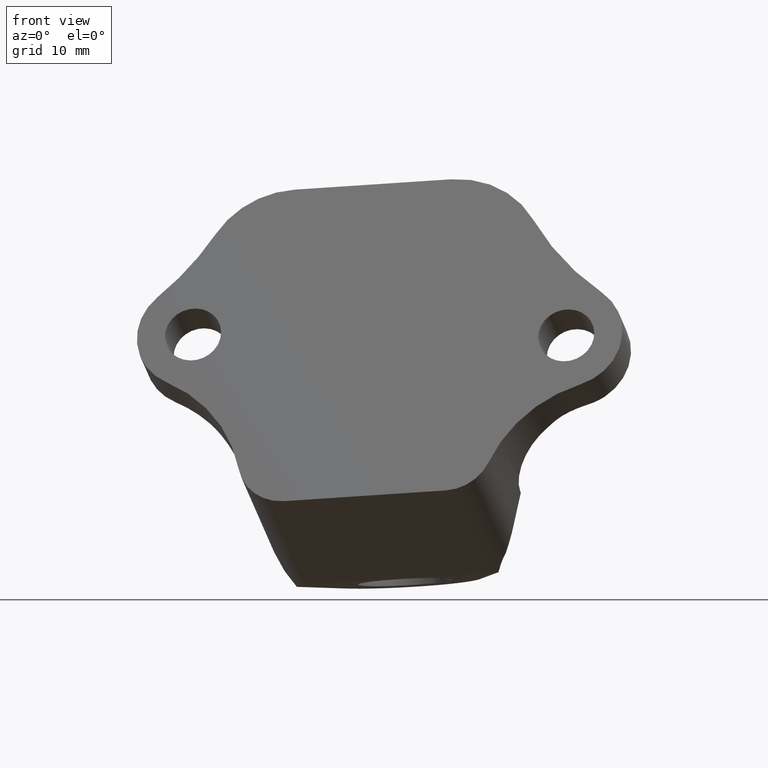
[diagram: clean part render]
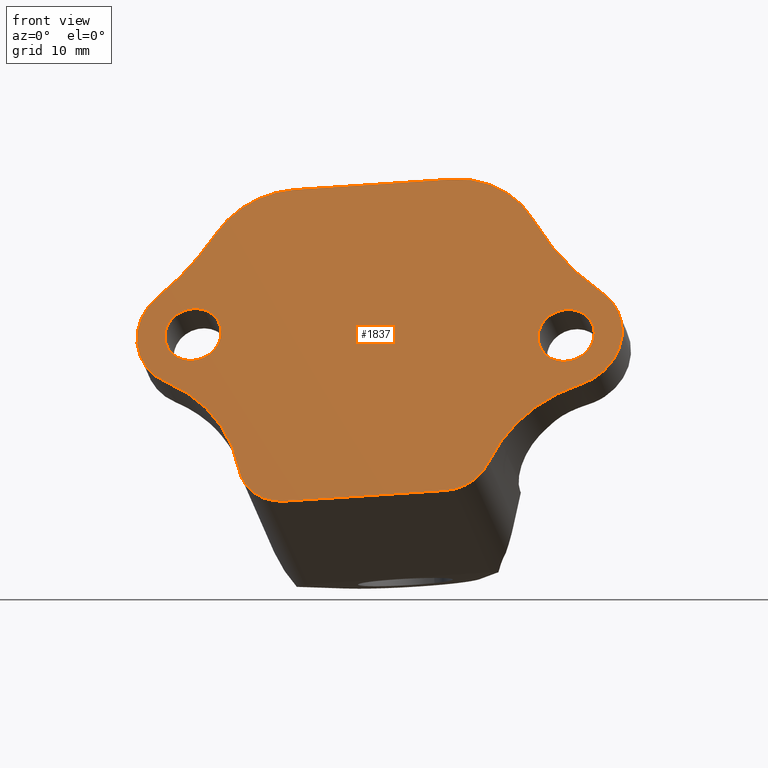
[diagram: same view with one face highlighted and labeled with its STEP entity id]
A machine part, front view. The second image highlights one B-rep face of the part: STEP entity #1837.
In plain terms, the highlighted planar face has unit normal (0.1825, 0.8911, -0.4155).
Its self-contained STEP definition (entity closure, byte-faithful):
#61=CARTESIAN_POINT('Vertex',(1331.61030027,258.493859038,164.295802746)) ;
#66=CARTESIAN_POINT('Axis2P3D Location',(1334.19882548,258.666229094,165.802396857)) ;
#70=CARTESIAN_POINT('Vertex',(1336.78735069,258.83859915,167.308990967)) ;
#92=CARTESIAN_POINT('Axis2P3D Location',(1334.19882548,258.666229094,165.802396857)) ;
#229=CARTESIAN_POINT('Vertex',(1299.80961019,259.174976697,151.788538031)) ;
#232=CARTESIAN_POINT('Axis2P3D Location',(1285.27377457,260.548928729,148.350262515)) ;
#236=CARTESIAN_POINT('Vertex',(1292.23586716,264.966287947,160.880873209)) ;
#369=CARTESIAN_POINT('Vertex',(1335.6919329,255.961794454,160.658792722)) ;
#374=CARTESIAN_POINT('Axis2P3D Location',(1339.42470147,249.200707855,147.799782384)) ;
#378=CARTESIAN_POINT('Vertex',(1326.05604809,254.126840732,152.491511471)) ;
#452=CARTESIAN_POINT('Vertex',(1297.6092294,266.90560169,167.399711597)) ;
#457=CARTESIAN_POINT('Axis2P3D Location',(1295.02070419,266.733231634,165.893117486)) ;
#461=CARTESIAN_POINT('Vertex',(1292.43217898,266.560861578,164.386523376)) ;
#483=CARTESIAN_POINT('Axis2P3D Location',(1295.02070419,266.733231634,165.893117486)) ;
#678=CARTESIAN_POINT('Axis2P3D Location',(1321.5998303,255.768885024,154.055421167)) ;
#682=CARTESIAN_POINT('Vertex',(1321.53417439,253.666951835,149.519170934)) ;
#886=CARTESIAN_POINT('Line Origine',(1313.06170361,255.141005666,148.958775286)) ;
#890=CARTESIAN_POINT('Vertex',(1304.58923282,256.615059497,148.398379638)) ;
#1519=CARTESIAN_POINT('Axis2P3D Location',(1304.65488874,258.716992686,152.93462987)) ;
#1628=CARTESIAN_POINT('Vertex',(1337.96977131,259.981879203,170.28001144)) ;
#1631=CARTESIAN_POINT('Axis2P3D Location',(1334.19882548,258.666229094,165.802396857)) ;
#1661=CARTESIAN_POINT('Axis2P3D Location',(1295.02070419,266.733231634,165.893117486)) ;
#1665=CARTESIAN_POINT('Vertex',(1291.32645438,269.331766559,169.842818055)) ;
#1761=CARTESIAN_POINT('Axis2P3D Location',(1339.21207139,291.514309751,238.444211215)) ;
#1766=CARTESIAN_POINT('Axis2P3D Location',(1321.98565033,264.577855101,173.114952198)) ;
#1770=CARTESIAN_POINT('Vertex',(1330.6930859,265.07567481,178.007062302)) ;
#1772=CARTESIAN_POINT('Vertex',(1322.11696215,268.78172148,182.187452662)) ;
#1775=CARTESIAN_POINT('Line Origine',(1313.90609039,270.210261899,181.64435999)) ;
#1779=CARTESIAN_POINT('Vertex',(1305.69521864,271.63880232,181.101267317)) ;
#1782=CARTESIAN_POINT('Axis2P3D Location',(1305.56390681,267.434935941,172.028766853)) ;
#1786=CARTESIAN_POINT('Vertex',(1297.38986915,271.158803795,176.423982028)) ;
#1789=CARTESIAN_POINT('Axis2P3D Location',(1272.85520533,282.324441184,189.591320898)) ;
#1793=CARTESIAN_POINT('Vertex',(1297.38673136,271.157310954,176.419402544)) ;
#1796=CARTESIAN_POINT('Axis2P3D Location',(1272.85520533,282.324441184,189.591320898)) ;
#1801=CARTESIAN_POINT('Axis2P3D Location',(1356.82450044,266.560129749,192.668084358)) ;
#1805=CARTESIAN_POINT('Vertex',(1330.69536178,265.073423692,178.003234612)) ;
#1808=CARTESIAN_POINT('Axis2P3D Location',(1356.82450044,266.560129749,192.668084358)) ;
#67=DIRECTION('Axis2P3D Direction',(-0.182515811719,-0.891077463515,0.415534514196)) ;
#93=DIRECTION('Axis2P3D Direction',(-0.182515811719,-0.891077463515,0.415534514196)) ;
#233=DIRECTION('Axis2P3D Direction',(0.182515811719,0.891077463515,-0.415534514196)) ;
#375=DIRECTION('Axis2P3D Direction',(0.182515811719,0.891077463515,-0.415534514196)) ;
#458=DIRECTION('Axis2P3D Direction',(-0.182515811719,-0.891077463515,0.415534514196)) ;
#484=DIRECTION('Axis2P3D Direction',(-0.182515811719,-0.891077463515,0.415534514196)) ;
#679=DIRECTION('Axis2P3D Direction',(0.182515811719,0.891077463515,-0.415534514196)) ;
#887=DIRECTION('Vector Direction',(0.983115227494,-0.171043938009,0.0650263080575)) ;
#1520=DIRECTION('Axis2P3D Direction',(0.182515811719,0.891077463515,-0.415534514196)) ;
#1632=DIRECTION('Axis2P3D Direction',(0.182515811719,0.891077463515,-0.415534514196)) ;
#1662=DIRECTION('Axis2P3D Direction',(0.182515811719,0.891077463515,-0.415534514196)) ;
#1762=DIRECTION('Axis2P3D Direction',(0.182515811719,0.891077463515,-0.415534514196)) ;
#1763=DIRECTION('Axis2P3D XDirection',(-0.39294746136,-0.321303057612,-0.861601205768)) ;
#1767=DIRECTION('Axis2P3D Direction',(0.182515811719,0.891077463515,-0.415534514196)) ;
#1776=DIRECTION('Vector Direction',(-0.983115227494,0.171043938009,-0.0650263080575)) ;
#1783=DIRECTION('Axis2P3D Direction',(0.182515811719,0.891077463515,-0.415534514196)) ;
#1790=DIRECTION('Axis2P3D Direction',(0.182515811719,0.891077463515,-0.415534514196)) ;
#1797=DIRECTION('Axis2P3D Direction',(0.182515811719,0.891077463515,-0.415534514196)) ;
#1802=DIRECTION('Axis2P3D Direction',(0.182515811719,0.891077463515,-0.415534514196)) ;
#1809=DIRECTION('Axis2P3D Direction',(0.182515811719,0.891077463515,-0.415534514196)) ;
#68=AXIS2_PLACEMENT_3D('Circle Axis2P3D',#66,#67,$) ;
#94=AXIS2_PLACEMENT_3D('Circle Axis2P3D',#92,#93,$) ;
#234=AXIS2_PLACEMENT_3D('Circle Axis2P3D',#232,#233,$) ;
#376=AXIS2_PLACEMENT_3D('Circle Axis2P3D',#374,#375,$) ;
#459=AXIS2_PLACEMENT_3D('Circle Axis2P3D',#457,#458,$) ;
#485=AXIS2_PLACEMENT_3D('Circle Axis2P3D',#483,#484,$) ;
#680=AXIS2_PLACEMENT_3D('Circle Axis2P3D',#678,#679,$) ;
#1521=AXIS2_PLACEMENT_3D('Circle Axis2P3D',#1519,#1520,$) ;
#1633=AXIS2_PLACEMENT_3D('Circle Axis2P3D',#1631,#1632,$) ;
#1663=AXIS2_PLACEMENT_3D('Circle Axis2P3D',#1661,#1662,$) ;
#1764=AXIS2_PLACEMENT_3D('Plane Axis2P3D',#1761,#1762,#1763) ;
#1768=AXIS2_PLACEMENT_3D('Circle Axis2P3D',#1766,#1767,$) ;
#1784=AXIS2_PLACEMENT_3D('Circle Axis2P3D',#1782,#1783,$) ;
#1791=AXIS2_PLACEMENT_3D('Circle Axis2P3D',#1789,#1790,$) ;
#1798=AXIS2_PLACEMENT_3D('Circle Axis2P3D',#1796,#1797,$) ;
#1803=AXIS2_PLACEMENT_3D('Circle Axis2P3D',#1801,#1802,$) ;
#1810=AXIS2_PLACEMENT_3D('Circle Axis2P3D',#1808,#1809,$) ;
#1814=ORIENTED_EDGE('',*,*,#1774,.T.) ;
#1815=ORIENTED_EDGE('',*,*,#1781,.T.) ;
#1816=ORIENTED_EDGE('',*,*,#1788,.T.) ;
#1817=ORIENTED_EDGE('',*,*,#1795,.T.) ;
#1818=ORIENTED_EDGE('',*,*,#1800,.T.) ;
#1819=ORIENTED_EDGE('',*,*,#1667,.F.) ;
#1820=ORIENTED_EDGE('',*,*,#238,.T.) ;
#1821=ORIENTED_EDGE('',*,*,#1523,.F.) ;
#1822=ORIENTED_EDGE('',*,*,#892,.T.) ;
#1823=ORIENTED_EDGE('',*,*,#684,.F.) ;
#1824=ORIENTED_EDGE('',*,*,#380,.T.) ;
#1825=ORIENTED_EDGE('',*,*,#1635,.F.) ;
#1826=ORIENTED_EDGE('',*,*,#1807,.T.) ;
#1827=ORIENTED_EDGE('',*,*,#1812,.T.) ;
#1830=ORIENTED_EDGE('',*,*,#72,.T.) ;
#1831=ORIENTED_EDGE('',*,*,#96,.T.) ;
#1834=ORIENTED_EDGE('',*,*,#487,.T.) ;
#1835=ORIENTED_EDGE('',*,*,#463,.T.) ;
#1832=FACE_BOUND('',#1829,.T.) ;
#1836=FACE_BOUND('',#1833,.T.) ;
#888=VECTOR('Line Direction',#887,1.) ;
#1777=VECTOR('Line Direction',#1776,1.) ;
#1837=ADVANCED_FACE('Hauptk\X2\00F6\X0\rper',(#1828,#1832,#1836),#1765,.F.) ;
#69=CIRCLE('generated circle',#68,3.) ;
#95=CIRCLE('generated circle',#94,3.) ;
#235=CIRCLE('generated circle',#234,15.) ;
#377=CIRCLE('generated circle',#376,15.) ;
#460=CIRCLE('generated circle',#459,3.) ;
#486=CIRCLE('generated circle',#485,3.) ;
#681=CIRCLE('generated circle',#680,5.) ;
#1522=CIRCLE('generated circle',#1521,5.) ;
#1634=CIRCLE('generated circle',#1633,6.) ;
#1664=CIRCLE('generated circle',#1663,6.) ;
#1769=CIRCLE('generated circle',#1768,10.) ;
#1785=CIRCLE('generated circle',#1784,10.) ;
#1792=CIRCLE('generated circle',#1791,30.) ;
#1799=CIRCLE('generated circle',#1798,30.) ;
#1804=CIRCLE('generated circle',#1803,30.) ;
#1811=CIRCLE('generated circle',#1810,30.) ;
#72=EDGE_CURVE('',#71,#62,#69,.F.) ;
#96=EDGE_CURVE('',#62,#71,#95,.F.) ;
#238=EDGE_CURVE('',#237,#230,#235,.T.) ;
#380=EDGE_CURVE('',#379,#370,#377,.T.) ;
#463=EDGE_CURVE('',#462,#453,#460,.F.) ;
#487=EDGE_CURVE('',#453,#462,#486,.F.) ;
#684=EDGE_CURVE('',#379,#683,#681,.T.) ;
#892=EDGE_CURVE('',#891,#683,#889,.T.) ;
#1523=EDGE_CURVE('',#891,#230,#1522,.T.) ;
#1635=EDGE_CURVE('',#1629,#370,#1634,.T.) ;
#1667=EDGE_CURVE('',#237,#1666,#1664,.T.) ;
#1774=EDGE_CURVE('',#1771,#1773,#1769,.F.) ;
#1781=EDGE_CURVE('',#1773,#1780,#1778,.T.) ;
#1788=EDGE_CURVE('',#1780,#1787,#1785,.F.) ;
#1795=EDGE_CURVE('',#1787,#1794,#1792,.T.) ;
#1800=EDGE_CURVE('',#1794,#1666,#1799,.T.) ;
#1807=EDGE_CURVE('',#1629,#1806,#1804,.T.) ;
#1812=EDGE_CURVE('',#1806,#1771,#1811,.T.) ;
#1813=EDGE_LOOP('',(#1814,#1815,#1816,#1817,#1818,#1819,#1820,#1821,#1822,#1823,#1824,#1825,#1826,#1827)) ;
#1829=EDGE_LOOP('',(#1830,#1831)) ;
#1833=EDGE_LOOP('',(#1834,#1835)) ;
#1828=FACE_OUTER_BOUND('',#1813,.T.) ;
#889=LINE('Line',#886,#888) ;
#1778=LINE('Line',#1775,#1777) ;
#1765=PLANE('Plane',#1764) ;
#62=VERTEX_POINT('',#61) ;
#71=VERTEX_POINT('',#70) ;
#230=VERTEX_POINT('',#229) ;
#237=VERTEX_POINT('',#236) ;
#370=VERTEX_POINT('',#369) ;
#379=VERTEX_POINT('',#378) ;
#453=VERTEX_POINT('',#452) ;
#462=VERTEX_POINT('',#461) ;
#683=VERTEX_POINT('',#682) ;
#891=VERTEX_POINT('',#890) ;
#1629=VERTEX_POINT('',#1628) ;
#1666=VERTEX_POINT('',#1665) ;
#1771=VERTEX_POINT('',#1770) ;
#1773=VERTEX_POINT('',#1772) ;
#1780=VERTEX_POINT('',#1779) ;
#1787=VERTEX_POINT('',#1786) ;
#1794=VERTEX_POINT('',#1793) ;
#1806=VERTEX_POINT('',#1805) ;